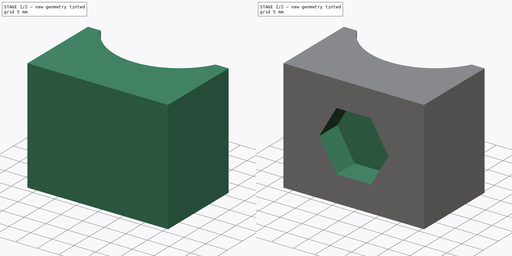
[diagram: build sequence overview — one tinted view per stage of 2, left to right]
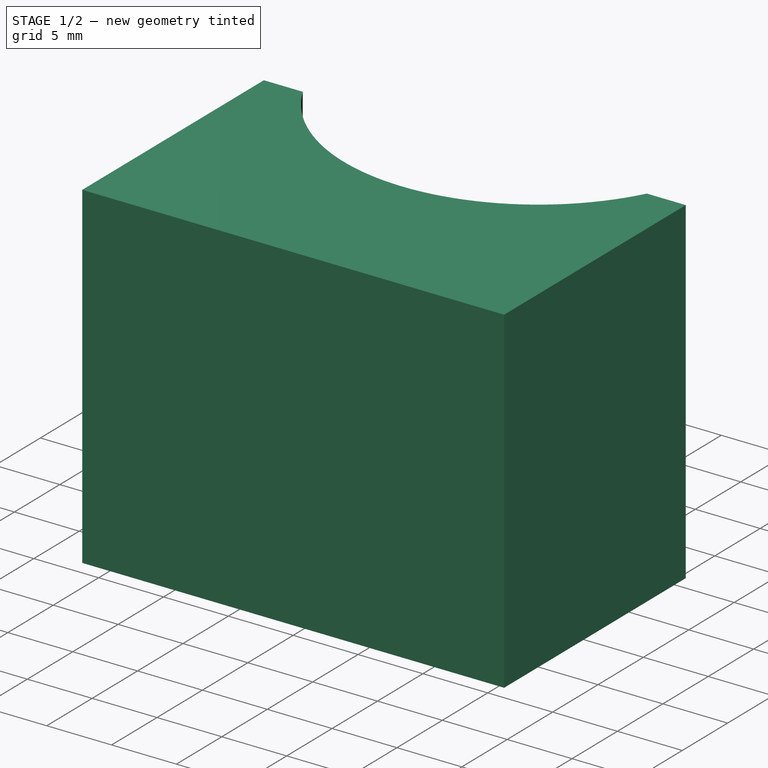
[diagram: stage 1 of 2 — iso view after this stage's code; geometry added in this stage tinted green]
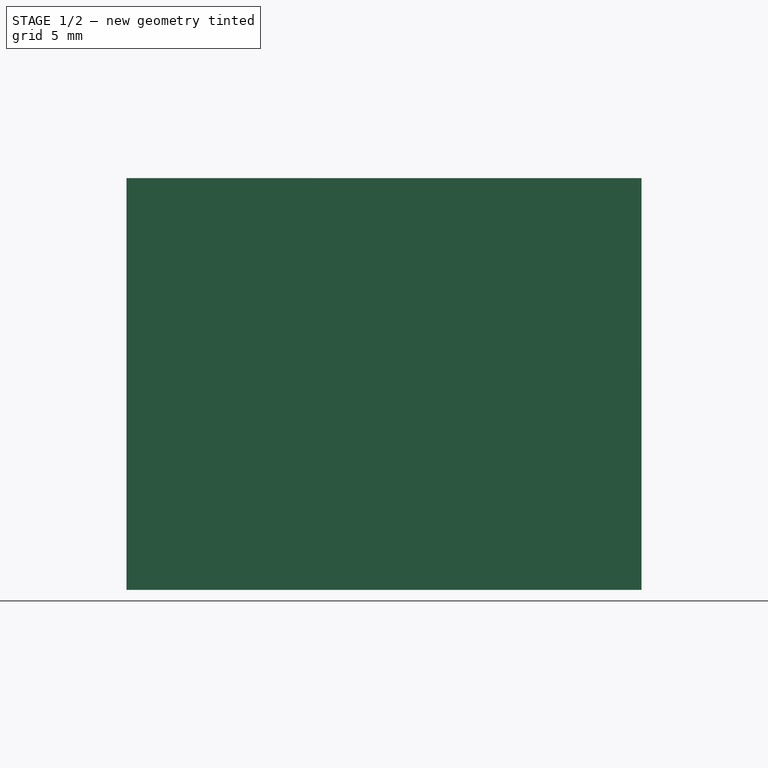
[diagram: stage 1 of 2 — front view after this stage's code; geometry added in this stage tinted green]
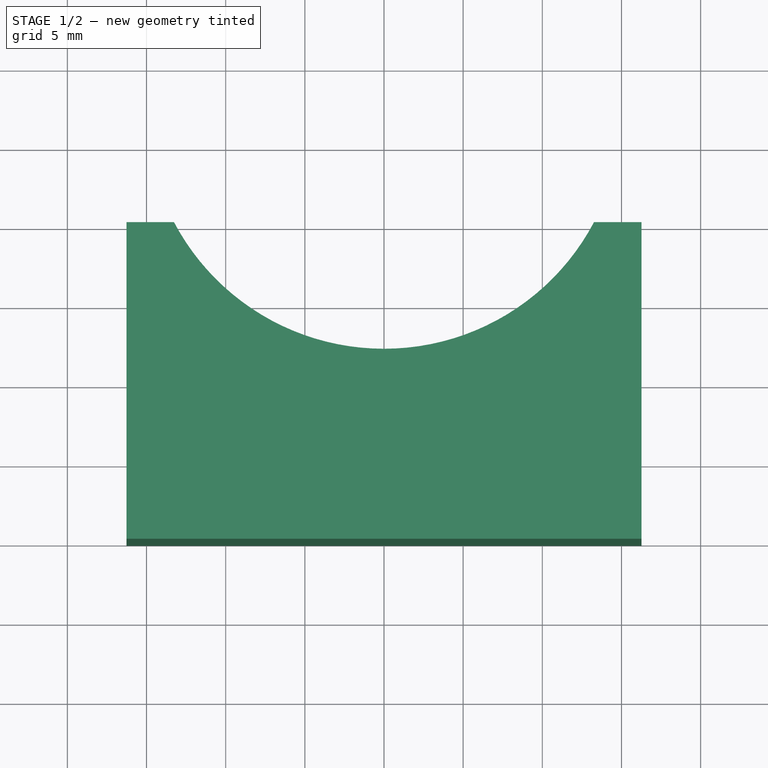
[diagram: stage 1 of 2 — top view after this stage's code; geometry added in this stage tinted green]
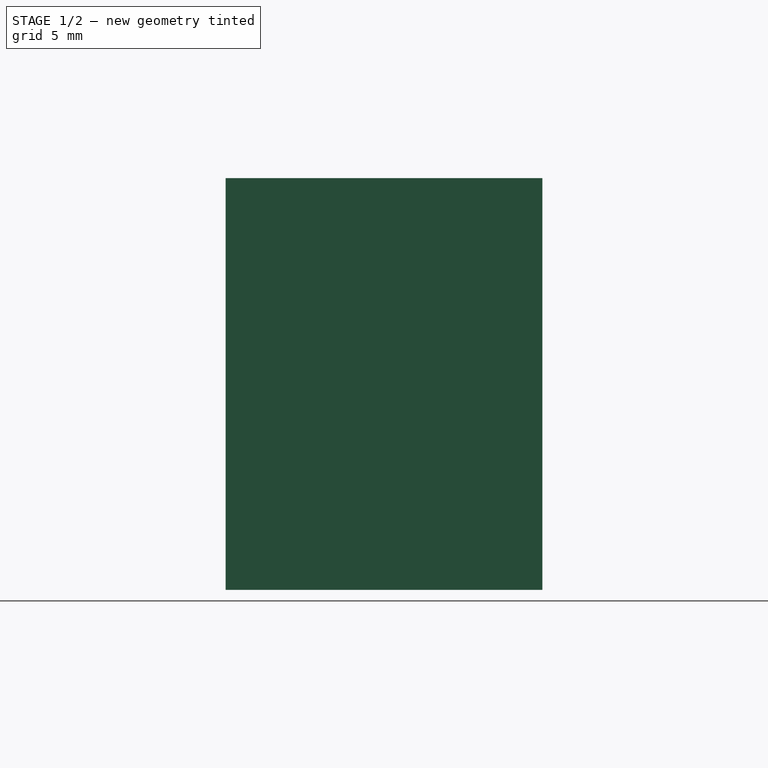
[diagram: stage 1 of 2 — right view after this stage's code; geometry added in this stage tinted green]
FCSTD DOCUMENT  (FreeCAD 0.22R38127 (Git))
Label: shoe
License: All rights reserved
LicenseURL: http://en.wikipedia.org/wiki/All_rights_reserved
objects: Sketcher::SketchObject×2, PartDesign::Pad×1, PartDesign::Pocket×1, PartDesign::Body×1
note: 7 computed .brp shape members not serialized (recipe doc carries the construction recipe); baked Part::Feature solids carry a one-line shape summary decoded from their .brp

FEATURE [Sketcher::SketchObject] Sketch
  AttachmentSupport = -> [XY_Plane]
  FullyConstrained = true
  MapMode = 5
  sketch-geometry (7):
    g0: ArcOfCircle CenterX=6e-16 CenterY=27 CenterZ=0 NormalX=0 NormalY=0 NormalZ=1 AngleXU=0 Radius=15 StartAngle=3.62711 EndAngle=5.79767
    g1: LineSegment StartX=-13.2665 StartY=20 StartZ=0 EndX=-16.2665 EndY=20 EndZ=0
    g2: LineSegment StartX=-16.2665 StartY=20 StartZ=0 EndX=-16.2665 EndY=0 EndZ=0
    g3: LineSegment StartX=-16.2665 StartY=0 StartZ=0 EndX=16.2665 EndY=0 EndZ=0
    g4: LineSegment StartX=13.2665 StartY=20 StartZ=0 EndX=16.2665 EndY=20 EndZ=0
    g5: LineSegment StartX=16.2665 StartY=20 StartZ=0 EndX=16.2665 EndY=0 EndZ=0
    g6: GeomPoint X=0 Y=12 Z=0
  constraints (20):
    c: Symmetric(g0,g0,g-2)
    c: Coincident(g1,g2)
    c: Vertical(g2)
    c: Coincident(g2,g3)
    c: Horizontal(g3)
    c: Horizontal(g1)
    c: Horizontal(g4)
    c: Coincident(g4,g5)
    c: Coincident(g5,g3)
    c: Coincident(g4,g0)
    c: Coincident(g1,g0)
    c: Vertical(g5)
    c: Equal(g1,g4)
    c: PointOnObject(g2,g-1)
    c: PointOnObject(g6,g0)
    c: PointOnObject(g6,g-2)
    c: DistanceY(g-1,g6) = 12
    c: DistanceX(g1,g1) = 3
    c: DistanceY(g2,g2) = 20
    c: Diameter(g0) = 30
FEATURE [PartDesign::Pad] Pad
  Direction = (0,0,1)
  Length = 26
  Length2 = 10
  Profile = -> Sketch
  ReferenceAxis = -> Sketch [N_Axis]
  Suppressed = false
  Type = 0
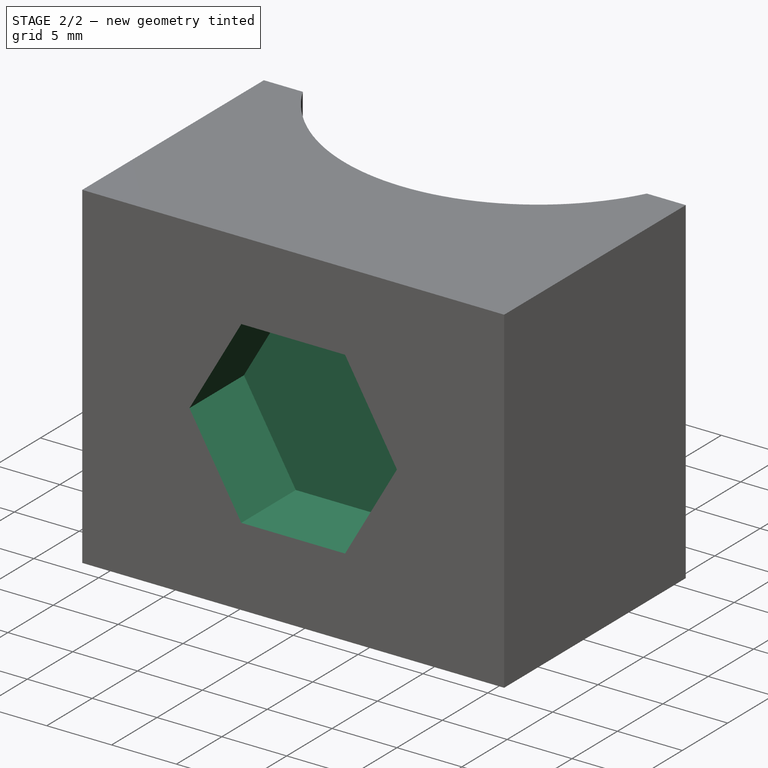
[diagram: stage 2 of 2 — iso view after this stage's code; geometry added in this stage tinted green]
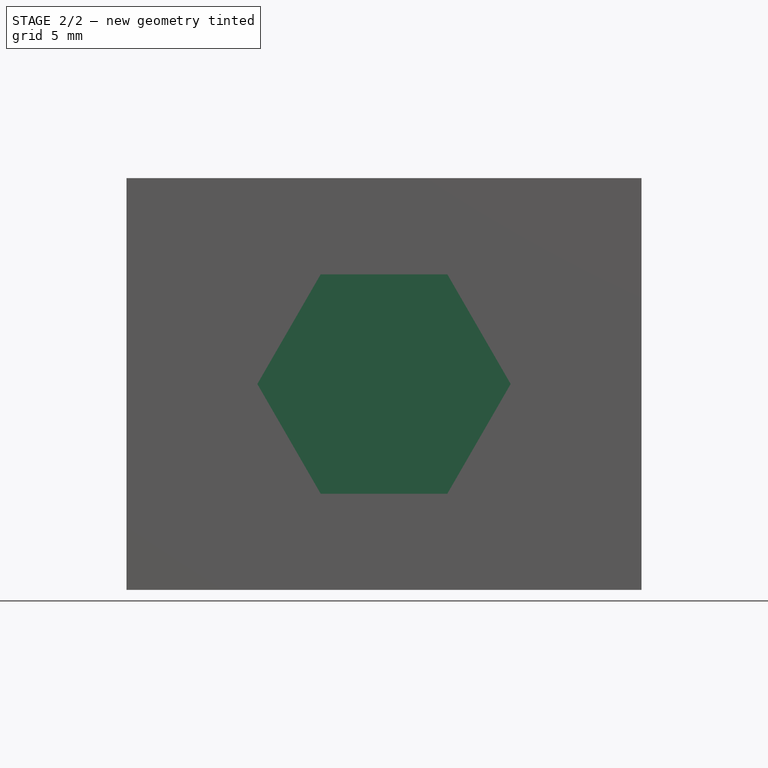
[diagram: stage 2 of 2 — front view after this stage's code; geometry added in this stage tinted green]
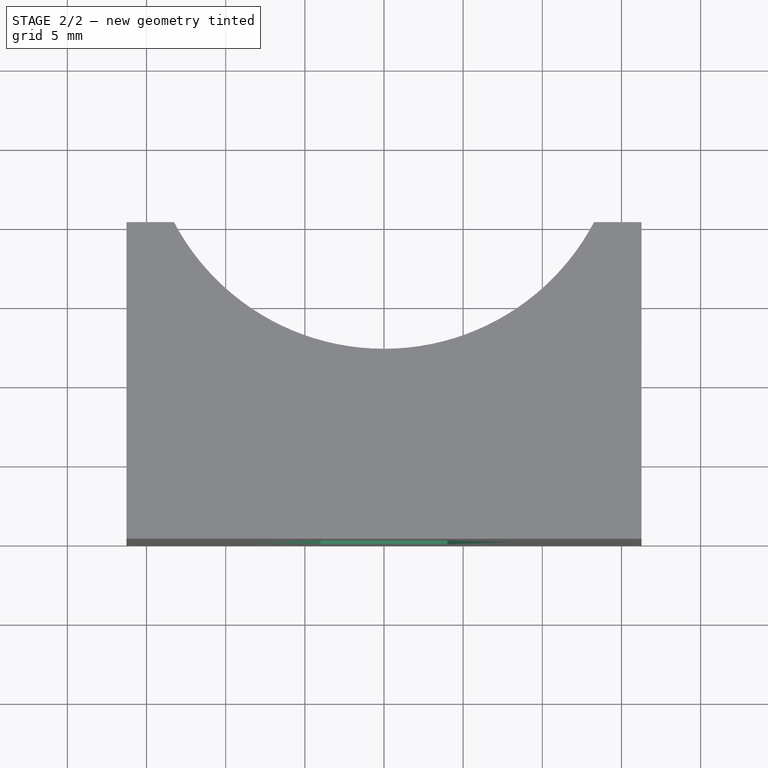
[diagram: stage 2 of 2 — top view after this stage's code; geometry added in this stage tinted green]
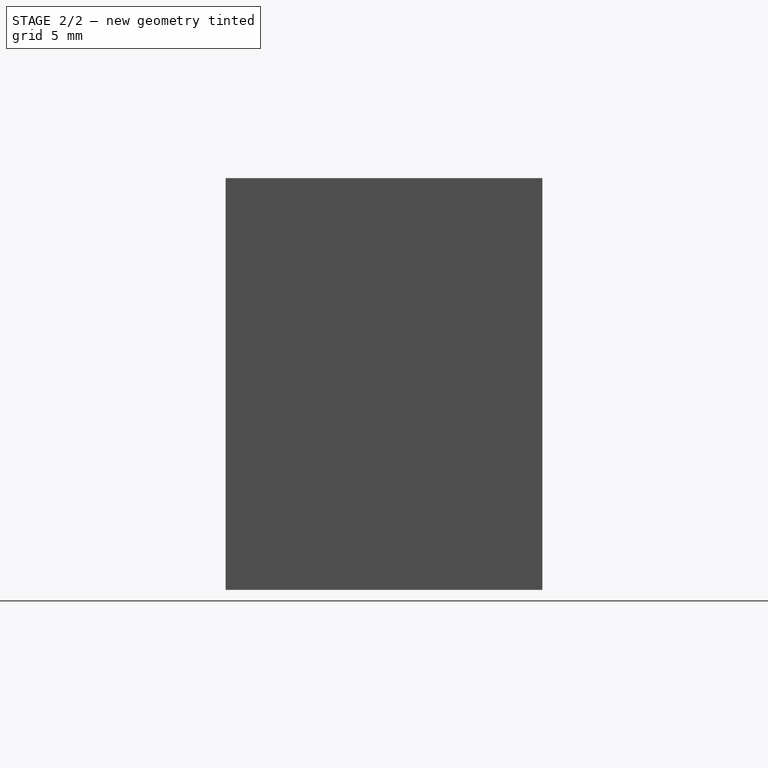
[diagram: stage 2 of 2 — right view after this stage's code; geometry added in this stage tinted green]
FEATURE [Sketcher::SketchObject] Sketch001
  AttachmentSupport = -> [XZ_Plane]
  ExternalGeometry = -> [Pad]
  FullyConstrained = true
  MapMode = 5
  Placement = pos=(0,0,0) rot=(1,0,0;1.5708rad)
  sketch-geometry (7):
    g0: LineSegment StartX=4 StartY=6.0718 StartZ=0 EndX=8 EndY=13 EndZ=0
    g1: LineSegment StartX=8 StartY=13 StartZ=0 EndX=4 EndY=19.9282 EndZ=0
    g2: LineSegment StartX=4 StartY=19.9282 StartZ=0 EndX=-4 EndY=19.9282 EndZ=0
    g3: LineSegment StartX=-4 StartY=19.9282 StartZ=0 EndX=-8 EndY=13 EndZ=0
    g4: LineSegment StartX=-8 StartY=13 StartZ=0 EndX=-4 EndY=6.0718 EndZ=0
    g5: LineSegment StartX=-4 StartY=6.0718 StartZ=0 EndX=4 EndY=6.0718 EndZ=0
    g6: Circle CenterX=0 CenterY=13 CenterZ=0 NormalX=0 NormalY=0 NormalZ=1 AngleXU=0 Radius=8
  constraints (17):
    c: Coincident(g0,g1)
    c: Coincident(g1,g2)
    c: Coincident(g2,g3)
    c: Coincident(g3,g4)
    c: Coincident(g4,g5)
    c: Coincident(g5,g0)
    c: Equal(g0, g1-g5) x5
    c: PointOnObject(g0,g6)
    c: PointOnObject(g1,g6)
    c: PointOnObject(g2,g6)
    c: PointOnObject(g3,g6)
    c: PointOnObject(g4,g6)
    c: PointOnObject(g5,g6)
    c: PointOnObject(g6,g-2)
    c: Horizontal(g5)
    c: DistanceY(g-1,g6) = 13
    c: Diameter(g6) = 16
FEATURE [PartDesign::Pocket] Pocket
  BaseFeature = -> Pad
  Direction = (0,1,-2e-16)
  Length = 6
  Length2 = 5
  Profile = -> Sketch001
  ReferenceAxis = -> Sketch001 [N_Axis]
  Suppressed = false
  Type = 0
FEATURE [PartDesign::Body] Body
  AllowCompound = false
  Group = -> [Sketch,Pad,Sketch001,Pocket]
  Origin = -> Origin
  Tip = -> Pocket
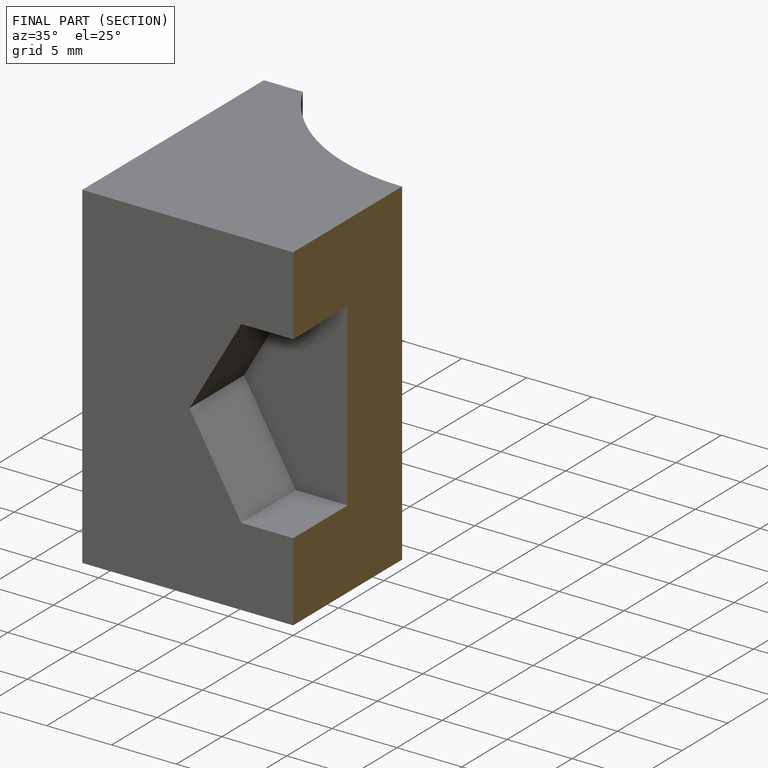
[diagram: finished part — half-section view (interior)]
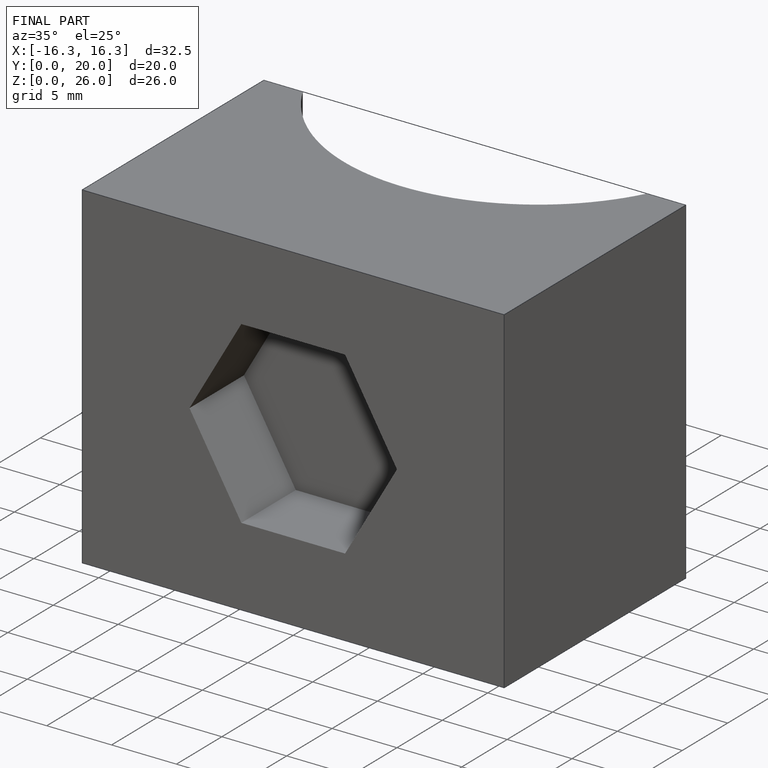
[diagram: finished part — iso view with bounding-box wireframe]
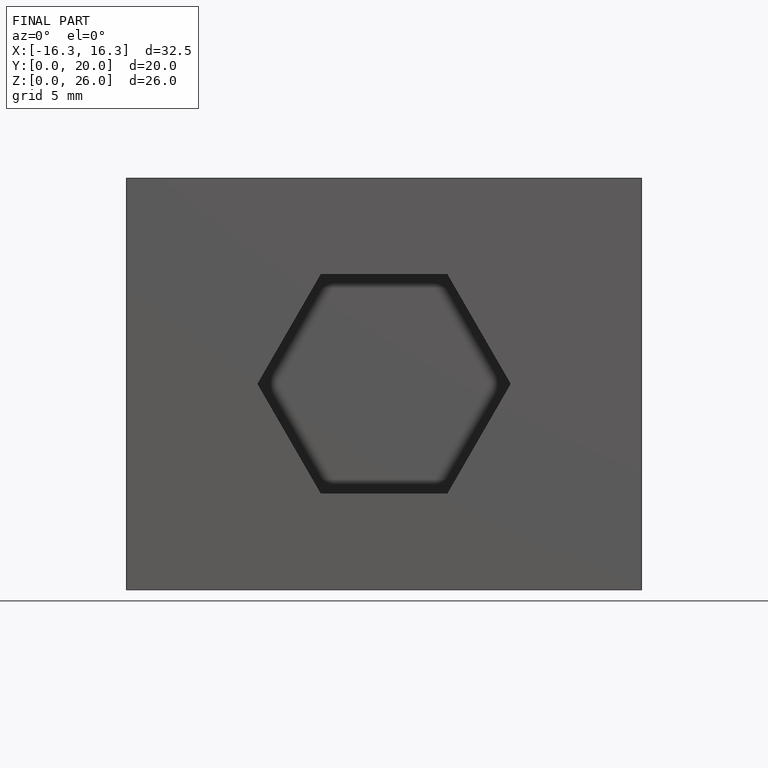
[diagram: finished part — front view with bounding-box wireframe]
